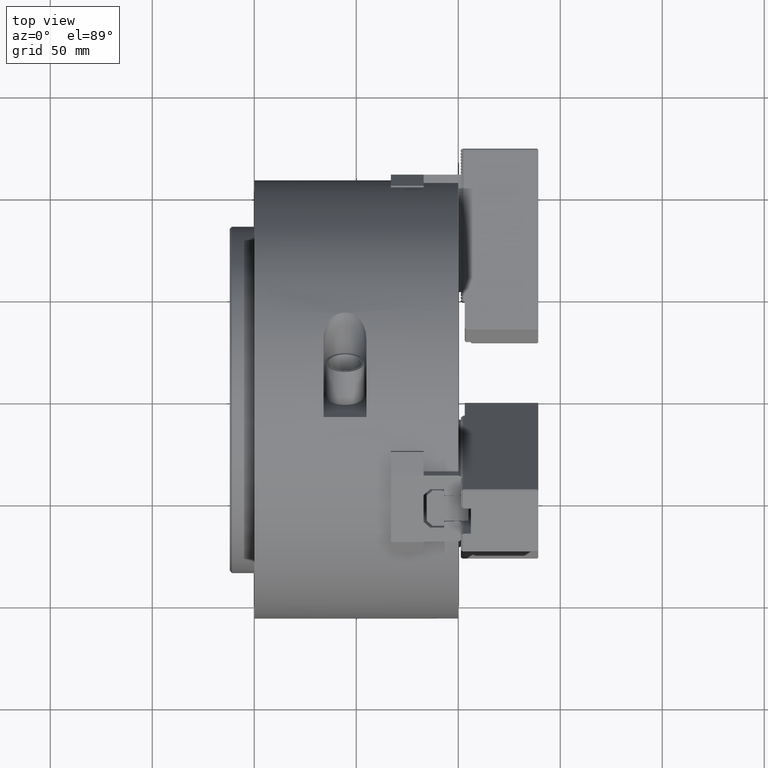
[diagram: clean part render]
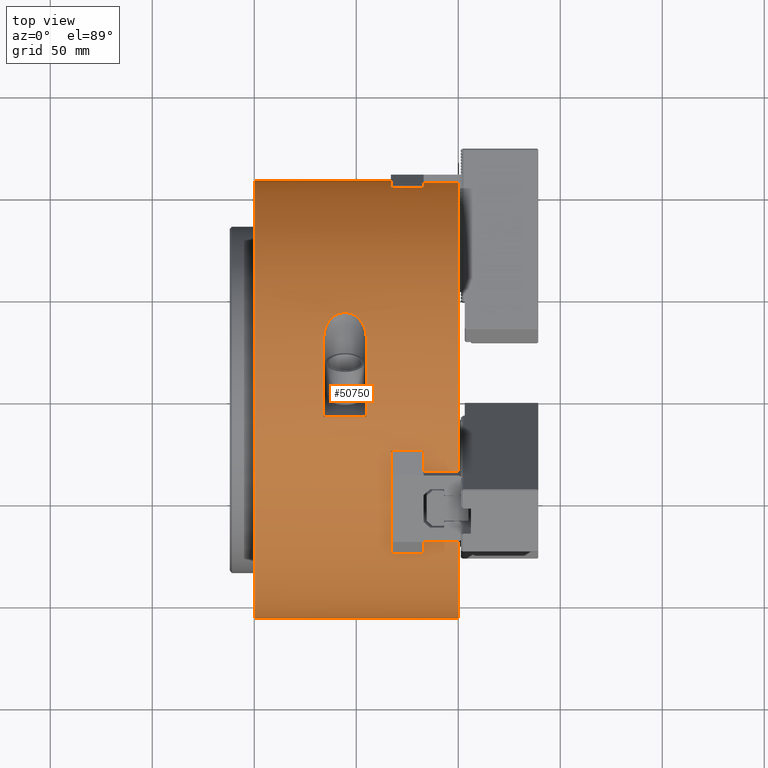
[diagram: same view with one face highlighted and labeled with its STEP entity id]
A machine part, top view. The second image highlights one B-rep face of the part: STEP entity #50750.
In plain terms, the highlighted cylindrical surface (bore or boss wall) has radius 107.5 mm, axis along (1, 0, 0).
Its self-contained STEP definition (entity closure, byte-faithful):
#57=B_SPLINE_CURVE_WITH_KNOTS('',3,(#71716,#71717,#71718,#71719,#71720,
#71721,#71722,#71723,#71724,#71725,#71726,#71727),.UNSPECIFIED.,.F.,.F.,
(4,1,1,1,1,1,1,1,1,4),(3.83919035808835E-16,0.00482801106460889,0.00965602212921739,
0.0144840331938259,0.0193120442584344,0.0217260497907386,0.0241400553230429,
0.0289680663876514,0.0337960774522599,0.0386240885168684),.UNSPECIFIED.);
#58=B_SPLINE_CURVE_WITH_KNOTS('',3,(#71735,#71736,#71737,#71738,#71739,
#71740,#71741,#71742,#71743,#71744,#71745,#71746),.UNSPECIFIED.,.F.,.F.,
(4,1,1,1,1,1,1,1,1,4),(3.46944695195361E-18,0.00482801106460849,0.00965602212921699,
0.0144840331938255,0.019312044258434,0.0217260497907382,0.0241400553230425,
0.028968066387651,0.0337960774522594,0.0386240885168679),.UNSPECIFIED.);
#59=B_SPLINE_CURVE_WITH_KNOTS('',3,(#71754,#71755,#71756,#71757,#71758,
#71759,#71760,#71761,#71762,#71763,#71764,#71765),.UNSPECIFIED.,.F.,.F.,
(4,1,1,1,1,1,1,1,1,4),(3.98609107286759E-17,0.00482801106460853,0.00965602212921702,
0.0144840331938255,0.019312044258434,0.0217260497907383,0.0241400553230425,
0.028968066387651,0.0337960774522595,0.038624088516868),.UNSPECIFIED.);
#88=LINE('',#71712,#6588);
#89=LINE('',#71731,#6589);
#90=LINE('',#71750,#6590);
#91=LINE('',#71768,#6591);
#92=LINE('',#71773,#6592);
#93=LINE('',#71777,#6593);
#94=LINE('',#71778,#6594);
#95=LINE('',#71782,#6595);
#96=LINE('',#71786,#6596);
#97=LINE('',#71790,#6597);
#98=LINE('',#71794,#6598);
#99=LINE('',#71798,#6599);
#100=LINE('',#71802,#6600);
#101=LINE('',#71806,#6601);
#102=LINE('',#71810,#6602);
#6588=VECTOR('',#57843,1000.);
#6589=VECTOR('',#57848,1000.);
#6590=VECTOR('',#57853,1000.);
#6591=VECTOR('',#57858,1000.);
#6592=VECTOR('',#57861,1000.);
#6593=VECTOR('',#57864,1000.);
#6594=VECTOR('',#57865,1000.);
#6595=VECTOR('',#57868,1000.);
#6596=VECTOR('',#57871,1000.);
#6597=VECTOR('',#57874,1000.);
#6598=VECTOR('',#57877,1000.);
#6599=VECTOR('',#57880,1000.);
#6600=VECTOR('',#57883,1000.);
#6601=VECTOR('',#57886,1000.);
#6602=VECTOR('',#57889,1000.);
#15518=CYLINDRICAL_SURFACE('',#54021,107.5);
#15895=ORIENTED_EDGE('',*,*,#30632,.T.);
#15896=ORIENTED_EDGE('',*,*,#30633,.F.);
#15897=ORIENTED_EDGE('',*,*,#30634,.T.);
#15898=ORIENTED_EDGE('',*,*,#30635,.F.);
#15899=ORIENTED_EDGE('',*,*,#30636,.T.);
#15900=ORIENTED_EDGE('',*,*,#30637,.F.);
#15901=ORIENTED_EDGE('',*,*,#30638,.T.);
#15902=ORIENTED_EDGE('',*,*,#30639,.F.);
#15903=ORIENTED_EDGE('',*,*,#30640,.T.);
#15904=ORIENTED_EDGE('',*,*,#30641,.F.);
#15905=ORIENTED_EDGE('',*,*,#30642,.T.);
#15906=ORIENTED_EDGE('',*,*,#30643,.F.);
#15907=ORIENTED_EDGE('',*,*,#30644,.T.);
#15908=ORIENTED_EDGE('',*,*,#30645,.F.);
#15909=ORIENTED_EDGE('',*,*,#30646,.F.);
#15910=ORIENTED_EDGE('',*,*,#30647,.T.);
#15911=ORIENTED_EDGE('',*,*,#30648,.F.);
#15912=ORIENTED_EDGE('',*,*,#30649,.T.);
#15913=ORIENTED_EDGE('',*,*,#30629,.F.);
#15914=ORIENTED_EDGE('',*,*,#30650,.F.);
#15915=ORIENTED_EDGE('',*,*,#30651,.T.);
#15916=ORIENTED_EDGE('',*,*,#30652,.F.);
#15917=ORIENTED_EDGE('',*,*,#30653,.T.);
#15918=ORIENTED_EDGE('',*,*,#30654,.T.);
#15919=ORIENTED_EDGE('',*,*,#30655,.F.);
#15920=ORIENTED_EDGE('',*,*,#30656,.T.);
#15921=ORIENTED_EDGE('',*,*,#30657,.T.);
#15922=ORIENTED_EDGE('',*,*,#30658,.F.);
#15923=ORIENTED_EDGE('',*,*,#30659,.T.);
#15924=ORIENTED_EDGE('',*,*,#30660,.F.);
#15925=ORIENTED_EDGE('',*,*,#30661,.T.);
#15926=ORIENTED_EDGE('',*,*,#30662,.T.);
#15927=ORIENTED_EDGE('',*,*,#30663,.F.);
#15928=ORIENTED_EDGE('',*,*,#30664,.T.);
#15929=ORIENTED_EDGE('',*,*,#30665,.F.);
#15930=ORIENTED_EDGE('',*,*,#30666,.F.);
#15931=ORIENTED_EDGE('',*,*,#30667,.T.);
#30629=EDGE_CURVE('',#42179,#42180,#38011,.T.);
#30632=EDGE_CURVE('',#42182,#42183,#38013,.T.);
#30633=EDGE_CURVE('',#42184,#42183,#88,.T.);
#30634=EDGE_CURVE('',#42184,#42185,#38014,.T.);
#30635=EDGE_CURVE('',#42182,#42185,#57,.T.);
#30636=EDGE_CURVE('',#42186,#42187,#38015,.T.);
#30637=EDGE_CURVE('',#42188,#42187,#89,.T.);
#30638=EDGE_CURVE('',#42188,#42189,#38016,.T.);
#30639=EDGE_CURVE('',#42186,#42189,#58,.T.);
#30640=EDGE_CURVE('',#42190,#42191,#38017,.T.);
#30641=EDGE_CURVE('',#42192,#42191,#90,.T.);
#30642=EDGE_CURVE('',#42192,#42193,#38018,.T.);
#30643=EDGE_CURVE('',#42190,#42193,#59,.T.);
#30644=EDGE_CURVE('',#42194,#42194,#38019,.T.);
#30645=EDGE_CURVE('',#42195,#42196,#91,.T.);
#30646=EDGE_CURVE('',#42197,#42195,#38020,.T.);
#30647=EDGE_CURVE('',#42197,#42198,#92,.T.);
#30648=EDGE_CURVE('',#42199,#42198,#38021,.T.);
#30649=EDGE_CURVE('',#42199,#42180,#93,.T.);
#30650=EDGE_CURVE('',#42200,#42179,#94,.T.);
#30651=EDGE_CURVE('',#42200,#42201,#38022,.T.);
#30652=EDGE_CURVE('',#42202,#42201,#95,.T.);
#30653=EDGE_CURVE('',#42202,#42203,#38023,.T.);
#30654=EDGE_CURVE('',#42203,#42204,#96,.T.);
#30655=EDGE_CURVE('',#42205,#42204,#38024,.T.);
#30656=EDGE_CURVE('',#42205,#42206,#97,.T.);
#30657=EDGE_CURVE('',#42206,#42207,#38025,.T.);
#30658=EDGE_CURVE('',#42208,#42207,#98,.T.);
#30659=EDGE_CURVE('',#42208,#42209,#38026,.T.);
#30660=EDGE_CURVE('',#42210,#42209,#99,.T.);
#30661=EDGE_CURVE('',#42210,#42211,#38027,.T.);
#30662=EDGE_CURVE('',#42211,#42212,#100,.T.);
#30663=EDGE_CURVE('',#42213,#42212,#38028,.T.);
#30664=EDGE_CURVE('',#42213,#42214,#101,.T.);
#30665=EDGE_CURVE('',#42215,#42214,#38029,.T.);
#30666=EDGE_CURVE('',#42216,#42215,#102,.T.);
#30667=EDGE_CURVE('',#42216,#42196,#38030,.T.);
#38011=CIRCLE('',#54019,107.5);
#38013=CIRCLE('',#54022,107.5);
#38014=CIRCLE('',#54023,107.5);
#38015=CIRCLE('',#54024,107.5);
#38016=CIRCLE('',#54025,107.5);
#38017=CIRCLE('',#54026,107.5);
#38018=CIRCLE('',#54027,107.5);
#38019=CIRCLE('',#54028,107.5);
#38020=CIRCLE('',#54029,107.5);
#38021=CIRCLE('',#54030,107.5);
#38022=CIRCLE('',#54031,107.5);
#38023=CIRCLE('',#54032,107.5);
#38024=CIRCLE('',#54033,107.5);
#38025=CIRCLE('',#54034,107.5);
#38026=CIRCLE('',#54035,107.5);
#38027=CIRCLE('',#54036,107.5);
#38028=CIRCLE('',#54037,107.5);
#38029=CIRCLE('',#54038,107.5);
#38030=CIRCLE('',#54039,107.5);
#38903=EDGE_LOOP('',(#15895,#15896,#15897,#15898));
#38904=EDGE_LOOP('',(#15899,#15900,#15901,#15902));
#38905=EDGE_LOOP('',(#15903,#15904,#15905,#15906));
#38906=EDGE_LOOP('',(#15907));
#38907=EDGE_LOOP('',(#15908,#15909,#15910,#15911,#15912,#15913,#15914,#15915,
#15916,#15917,#15918,#15919,#15920,#15921,#15922,#15923,#15924,#15925,#15926,
#15927,#15928,#15929,#15930,#15931));
#42179=VERTEX_POINT('',#71702);
#42180=VERTEX_POINT('',#71704);
#42182=VERTEX_POINT('',#71710);
#42183=VERTEX_POINT('',#71711);
#42184=VERTEX_POINT('',#71713);
#42185=VERTEX_POINT('',#71715);
#42186=VERTEX_POINT('',#71729);
#42187=VERTEX_POINT('',#71730);
#42188=VERTEX_POINT('',#71732);
#42189=VERTEX_POINT('',#71734);
#42190=VERTEX_POINT('',#71748);
#42191=VERTEX_POINT('',#71749);
#42192=VERTEX_POINT('',#71751);
#42193=VERTEX_POINT('',#71753);
#42194=VERTEX_POINT('',#71767);
#42195=VERTEX_POINT('',#71769);
#42196=VERTEX_POINT('',#71770);
#42197=VERTEX_POINT('',#71772);
#42198=VERTEX_POINT('',#71774);
#42199=VERTEX_POINT('',#71776);
#42200=VERTEX_POINT('',#71779);
#42201=VERTEX_POINT('',#71781);
#42202=VERTEX_POINT('',#71783);
#42203=VERTEX_POINT('',#71785);
#42204=VERTEX_POINT('',#71787);
#42205=VERTEX_POINT('',#71789);
#42206=VERTEX_POINT('',#71791);
#42207=VERTEX_POINT('',#71793);
#42208=VERTEX_POINT('',#71795);
#42209=VERTEX_POINT('',#71797);
#42210=VERTEX_POINT('',#71799);
#42211=VERTEX_POINT('',#71801);
#42212=VERTEX_POINT('',#71803);
#42213=VERTEX_POINT('',#71805);
#42214=VERTEX_POINT('',#71807);
#42215=VERTEX_POINT('',#71809);
#42216=VERTEX_POINT('',#71811);
#47335=FACE_BOUND('',#38903,.T.);
#47336=FACE_BOUND('',#38904,.T.);
#47337=FACE_BOUND('',#38905,.T.);
#47338=FACE_BOUND('',#38906,.T.);
#47339=FACE_BOUND('',#38907,.T.);
#50750=ADVANCED_FACE('',(#47335,#47336,#47337,#47338,#47339),#15518,.T.);
#54019=AXIS2_PLACEMENT_3D('',#71703,#57834,#57835);
#54021=AXIS2_PLACEMENT_3D('',#71708,#57839,#57840);
#54022=AXIS2_PLACEMENT_3D('',#71709,#57841,#57842);
#54023=AXIS2_PLACEMENT_3D('',#71714,#57844,#57845);
#54024=AXIS2_PLACEMENT_3D('',#71728,#57846,#57847);
#54025=AXIS2_PLACEMENT_3D('',#71733,#57849,#57850);
#54026=AXIS2_PLACEMENT_3D('',#71747,#57851,#57852);
#54027=AXIS2_PLACEMENT_3D('',#71752,#57854,#57855);
#54028=AXIS2_PLACEMENT_3D('',#71766,#57856,#57857);
#54029=AXIS2_PLACEMENT_3D('',#71771,#57859,#57860);
#54030=AXIS2_PLACEMENT_3D('',#71775,#57862,#57863);
#54031=AXIS2_PLACEMENT_3D('',#71780,#57866,#57867);
#54032=AXIS2_PLACEMENT_3D('',#71784,#57869,#57870);
#54033=AXIS2_PLACEMENT_3D('',#71788,#57872,#57873);
#54034=AXIS2_PLACEMENT_3D('',#71792,#57875,#57876);
#54035=AXIS2_PLACEMENT_3D('',#71796,#57878,#57879);
#54036=AXIS2_PLACEMENT_3D('',#71800,#57881,#57882);
#54037=AXIS2_PLACEMENT_3D('',#71804,#57884,#57885);
#54038=AXIS2_PLACEMENT_3D('',#71808,#57887,#57888);
#54039=AXIS2_PLACEMENT_3D('',#71812,#57890,#57891);
#57834=DIRECTION('',(1.,0.,0.));
#57835=DIRECTION('',(0.,0.,-1.));
#57839=DIRECTION('',(1.,0.,0.));
#57840=DIRECTION('',(0.,0.,-1.));
#57841=DIRECTION('',(1.,-8.42341640326592E-17,1.4589785183766E-16));
#57842=DIRECTION('',(1.4589785183766E-16,0.,-1.));
#57843=DIRECTION('',(1.,0.,0.));
#57844=DIRECTION('',(-1.,0.,0.));
#57845=DIRECTION('',(0.,0.,1.));
#57846=DIRECTION('',(1.,-8.42341640326612E-17,-1.45897851837659E-16));
#57847=DIRECTION('',(-1.45897851837659E-16,0.,-1.));
#57848=DIRECTION('',(1.,0.,0.));
#57849=DIRECTION('',(-1.,0.,0.));
#57850=DIRECTION('',(0.,0.,1.));
#57851=DIRECTION('',(1.,1.68468328065321E-16,0.));
#57852=DIRECTION('',(-1.68468328065321E-16,1.,0.));
#57853=DIRECTION('',(1.,0.,0.));
#57854=DIRECTION('',(-1.,0.,0.));
#57855=DIRECTION('',(0.,0.,1.));
#57856=DIRECTION('',(1.,0.,0.));
#57857=DIRECTION('',(0.,0.,-1.));
#57858=DIRECTION('',(1.,0.,0.));
#57859=DIRECTION('',(1.,0.,0.));
#57860=DIRECTION('',(0.,0.,-1.));
#57861=DIRECTION('',(1.,0.,0.));
#57862=DIRECTION('',(-1.,0.,0.));
#57863=DIRECTION('',(0.,0.,1.));
#57864=DIRECTION('',(1.,0.,0.));
#57865=DIRECTION('',(1.,0.,0.));
#57866=DIRECTION('',(1.,0.,0.));
#57867=DIRECTION('',(0.,-0.866025403784436,0.500000000000004));
#57868=DIRECTION('',(1.,0.,0.));
#57869=DIRECTION('',(-1.,0.,0.));
#57870=DIRECTION('',(0.,0.866025403784436,-0.500000000000004));
#57871=DIRECTION('',(1.,0.,0.));
#57872=DIRECTION('',(-1.,0.,0.));
#57873=DIRECTION('',(0.,0.866025403784436,-0.500000000000004));
#57874=DIRECTION('',(1.,0.,0.));
#57875=DIRECTION('',(-1.,0.,0.));
#57876=DIRECTION('',(0.,-0.866025403784443,-0.499999999999992));
#57877=DIRECTION('',(1.,0.,0.));
#57878=DIRECTION('',(1.,0.,0.));
#57879=DIRECTION('',(0.,0.866025403784443,0.499999999999992));
#57880=DIRECTION('',(1.,0.,0.));
#57881=DIRECTION('',(-1.,0.,0.));
#57882=DIRECTION('',(0.,-0.866025403784443,-0.499999999999992));
#57883=DIRECTION('',(1.,0.,0.));
#57884=DIRECTION('',(-1.,0.,0.));
#57885=DIRECTION('',(0.,-0.866025403784443,-0.499999999999992));
#57886=DIRECTION('',(1.,0.,0.));
#57887=DIRECTION('',(1.,0.,0.));
#57888=DIRECTION('',(0.,0.866025403784443,0.499999999999992));
#57889=DIRECTION('',(1.,0.,0.));
#57890=DIRECTION('',(1.,0.,0.));
#57891=DIRECTION('',(0.,-1.3988810110277E-14,-1.));
#71702=CARTESIAN_POINT('',(0.,-36.9266178141567,-100.958778205796));
#71703=CARTESIAN_POINT('',(0.,0.,0.));
#71704=CARTESIAN_POINT('',(0.,105.896175568337,-18.5));
#71708=CARTESIAN_POINT('',(7.58953753753755,0.,0.));
#71709=CARTESIAN_POINT('',(-45.,0.,0.));
#71710=CARTESIAN_POINT('',(-45.,27.7054560473896,103.868463477642));
#71711=CARTESIAN_POINT('',(-45.,-10.3903888224917,106.996681350953));
#71712=CARTESIAN_POINT('',(7.58953753753755,-10.3903888224917,106.996681350953));
#71713=CARTESIAN_POINT('',(-66.,-10.3903888224917,106.996681350953));
#71714=CARTESIAN_POINT('',(-66.,0.,0.));
#71715=CARTESIAN_POINT('',(-66.,27.7054560473894,103.868463477642));
#71716=CARTESIAN_POINT('',(-45.,27.7054560473892,103.868463477642));
#71717=CARTESIAN_POINT('',(-45.,29.2750944189046,103.44978445365));
#71718=CARTESIAN_POINT('',(-45.3690207820173,32.3633481184559,102.549237333583));
#71719=CARTESIAN_POINT('',(-47.2269107329785,36.660915006623,101.085087109352));
#71720=CARTESIAN_POINT('',(-50.6608044498885,40.0341422434786,99.7783418768388));
#71721=CARTESIAN_POINT('',(-54.6688054298932,41.1774231961648,99.3002518097911));
#71722=CARTESIAN_POINT('',(-57.9163074927675,40.7360724228658,99.483546390751));
#71723=CARTESIAN_POINT('',(-60.8997140071236,39.4752965481659,99.9957098149791));
#71724=CARTESIAN_POINT('',(-63.7731461482349,36.664450524702,101.083461641788));
#71725=CARTESIAN_POINT('',(-65.6290650509916,32.3688936270347,102.547612843455));
#71726=CARTESIAN_POINT('',(-66.,29.2762065398642,103.44948781098));
#71727=CARTESIAN_POINT('',(-66.,27.7054560473892,103.868463477642));
#71728=CARTESIAN_POINT('',(-45.,0.,0.));
#71729=CARTESIAN_POINT('',(-45.,-103.805456047388,-27.9406029783494));
#71730=CARTESIAN_POINT('',(-45.,-87.4666497593081,-62.4966813509528));
#71731=CARTESIAN_POINT('',(7.58953753753755,-87.4666497593081,-62.4966813509528));
#71732=CARTESIAN_POINT('',(-66.,-87.4666497593081,-62.4966813509528));
#71733=CARTESIAN_POINT('',(-66.,0.,0.));
#71734=CARTESIAN_POINT('',(-66.,-103.805456047388,-27.9406029783494));
#71735=CARTESIAN_POINT('',(-45.,-103.805456047388,-27.9406029783494));
#71736=CARTESIAN_POINT('',(-45.,-104.227688562338,-26.3719167618665));
#71737=CARTESIAN_POINT('',(-45.3690207820172,-104.99191872883,-23.2471370446907));
#71738=CARTESIAN_POINT('',(-47.2269107329785,-105.872710883773,-18.7932598329597));
#71739=CARTESIAN_POINT('',(-50.6608044498884,-106.42764993457,-15.2185867368484));
#71740=CARTESIAN_POINT('',(-54.6688054298931,-106.585252267553,-13.9894313546353));
#71741=CARTESIAN_POINT('',(-57.9163074927674,-106.523314644391,-14.4632996267721));
#71742=CARTESIAN_POINT('',(-60.8997140071235,-106.336473243312,-15.8112452748549));
#71743=CARTESIAN_POINT('',(-63.7731461482348,-105.873070946609,-18.7893852507055));
#71744=CARTESIAN_POINT('',(-65.6290650509916,-104.9932846334,-23.2415222483201));
#71745=CARTESIAN_POINT('',(-66.,-104.227987722729,-26.3708053155283));
#71746=CARTESIAN_POINT('',(-66.,-103.805456047388,-27.9406029783494));
#71747=CARTESIAN_POINT('',(-45.,0.,0.));
#71748=CARTESIAN_POINT('',(-45.,76.1,-75.9278604992923));
#71749=CARTESIAN_POINT('',(-45.,97.8570385818005,-44.5));
#71750=CARTESIAN_POINT('',(7.58953753753755,97.8570385818005,-44.5));
#71751=CARTESIAN_POINT('',(-66.,97.8570385818005,-44.5));
#71752=CARTESIAN_POINT('',(-66.,0.,0.));
#71753=CARTESIAN_POINT('',(-66.,76.1,-75.9278604992923));
#71754=CARTESIAN_POINT('',(-45.,76.1,-75.9278604992923));
#71755=CARTESIAN_POINT('',(-45.,74.952594143434,-77.0778676917837));
#71756=CARTESIAN_POINT('',(-45.3690207820172,72.6285706103757,-79.3021002888925));
#71757=CARTESIAN_POINT('',(-47.2269107329786,69.2117958771517,-82.291827276393));
#71758=CARTESIAN_POINT('',(-50.6608044498884,66.3935076910929,-84.5597551399907));
#71759=CARTESIAN_POINT('',(-54.6688054298931,65.4078290713895,-85.3108204551561));
#71760=CARTESIAN_POINT('',(-57.9163074927674,65.7872422215263,-85.0202467639792));
#71761=CARTESIAN_POINT('',(-60.8997140071235,66.861176695147,-84.1844645401245));
#71762=CARTESIAN_POINT('',(-63.7731461482348,69.2086204219084,-82.2940763910829));
#71763=CARTESIAN_POINT('',(-65.6290650509916,72.6243910063668,-79.3060905951348));
#71764=CARTESIAN_POINT('',(-66.,74.951781182866,-77.0786824954516));
#71765=CARTESIAN_POINT('',(-66.,76.1,-75.9278604992923));
#71766=CARTESIAN_POINT('',(-100.,0.,0.));
#71767=CARTESIAN_POINT('',(-100.,0.,-107.5));
#71768=CARTESIAN_POINT('',(7.58953753753754,103.584204876999,28.7499999999986));
#71769=CARTESIAN_POINT('',(-33.,103.584204876999,28.7499999999986));
#71770=CARTESIAN_POINT('',(-17.,103.584204876999,28.7499999999986));
#71771=CARTESIAN_POINT('',(-33.,0.,0.));
#71772=CARTESIAN_POINT('',(-33.,103.584204876998,-28.75));
#71773=CARTESIAN_POINT('',(7.58953753753754,103.584204876998,-28.75));
#71774=CARTESIAN_POINT('',(-17.,103.584204876998,-28.75));
#71775=CARTESIAN_POINT('',(-17.,0.,0.));
#71776=CARTESIAN_POINT('',(-17.,105.896175568337,-18.5));
#71777=CARTESIAN_POINT('',(7.58953753753755,105.896175568337,-18.5));
#71778=CARTESIAN_POINT('',(7.58953753753755,-36.9266178141567,-100.958778205796));
#71779=CARTESIAN_POINT('',(-17.,-36.9266178141567,-100.958778205796));
#71780=CARTESIAN_POINT('',(-17.,0.,0.));
#71781=CARTESIAN_POINT('',(-17.,-26.8938720796971,-104.081552854293));
#71782=CARTESIAN_POINT('',(7.58953753753754,-26.8938720796971,-104.081552854293));
#71783=CARTESIAN_POINT('',(-33.,-26.8938720796971,-104.081552854293));
#71784=CARTESIAN_POINT('',(-33.,0.,0.));
#71785=CARTESIAN_POINT('',(-33.,-76.6903327973022,-75.3315528542923));
#71786=CARTESIAN_POINT('',(7.58953753753754,-76.6903327973022,-75.3315528542923));
#71787=CARTESIAN_POINT('',(-17.,-76.6903327973022,-75.3315528542923));
#71788=CARTESIAN_POINT('',(-17.,0.,0.));
#71789=CARTESIAN_POINT('',(-17.,-68.9695577541809,-82.4587782057963));
#71790=CARTESIAN_POINT('',(7.58953753753755,-68.9695577541809,-82.4587782057963));
#71791=CARTESIAN_POINT('',(0.,-68.9695577541809,-82.4587782057963));
#71792=CARTESIAN_POINT('',(0.,0.,0.));
#71793=CARTESIAN_POINT('',(0.,-68.9695577541797,82.4587782057973));
#71794=CARTESIAN_POINT('',(7.58953753753755,-68.9695577541797,82.4587782057973));
#71795=CARTESIAN_POINT('',(-17.,-68.9695577541797,82.4587782057973));
#71796=CARTESIAN_POINT('',(-17.,0.,0.));
#71797=CARTESIAN_POINT('',(-17.,-76.6903327973012,75.3315528542933));
#71798=CARTESIAN_POINT('',(7.58953753753754,-76.6903327973012,75.3315528542933));
#71799=CARTESIAN_POINT('',(-33.,-76.6903327973012,75.3315528542933));
#71800=CARTESIAN_POINT('',(-33.,0.,0.));
#71801=CARTESIAN_POINT('',(-33.,-26.8938720796957,104.081552854293));
#71802=CARTESIAN_POINT('',(7.58953753753754,-26.8938720796957,104.081552854293));
#71803=CARTESIAN_POINT('',(-17.,-26.8938720796957,104.081552854293));
#71804=CARTESIAN_POINT('',(-17.,0.,0.));
#71805=CARTESIAN_POINT('',(-17.,-36.9266178141553,100.958778205797));
#71806=CARTESIAN_POINT('',(7.58953753753755,-36.9266178141553,100.958778205797));
#71807=CARTESIAN_POINT('',(0.,-36.9266178141553,100.958778205797));
#71808=CARTESIAN_POINT('',(0.,0.,0.));
#71809=CARTESIAN_POINT('',(0.,105.896175568337,18.4999999999985));
#71810=CARTESIAN_POINT('',(7.58953753753755,105.896175568337,18.4999999999985));
#71811=CARTESIAN_POINT('',(-17.,105.896175568337,18.4999999999985));
#71812=CARTESIAN_POINT('',(-17.,0.,0.));